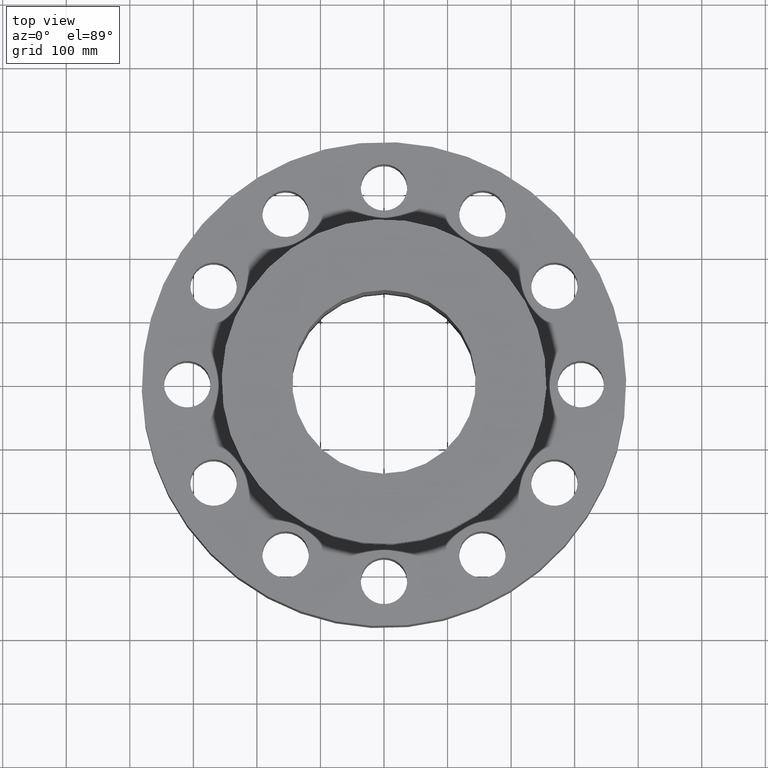
[diagram: clean part render]
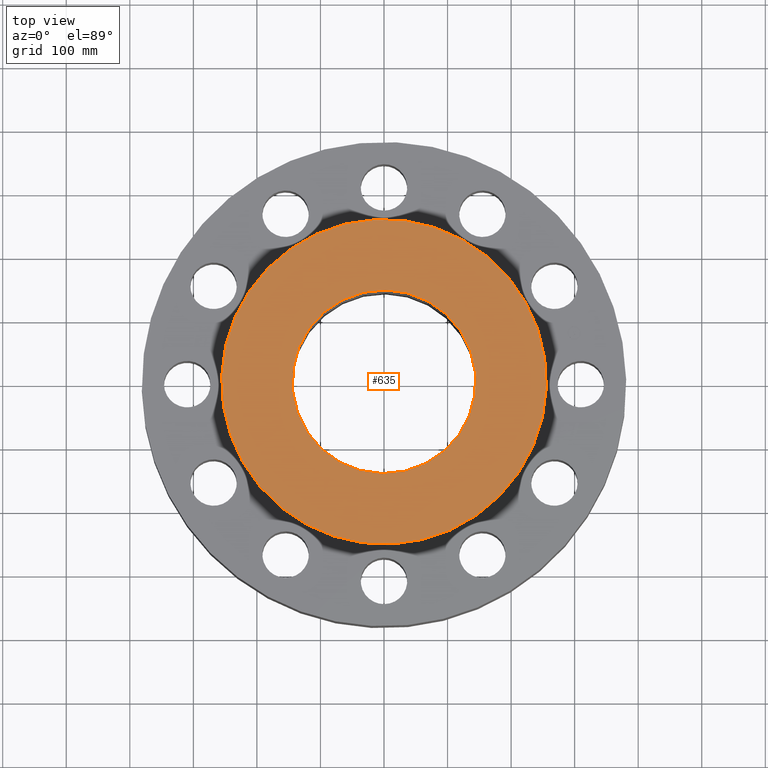
[diagram: same view with one face highlighted and labeled with its STEP entity id]
A machine part, top view. The second image highlights one B-rep face of the part: STEP entity #635.
In plain terms, the highlighted planar face has unit normal (0, 0, -1).
Its self-contained STEP definition (entity closure, byte-faithful):
#579=AXIS2_PLACEMENT_3D('Circle Axis2P3D',#577,#578,$) ;
#598=AXIS2_PLACEMENT_3D('Circle Axis2P3D',#596,#597,$) ;
#611=AXIS2_PLACEMENT_3D('Plane Axis2P3D',#608,#609,#610) ;
#619=AXIS2_PLACEMENT_3D('Circle Axis2P3D',#617,#618,$) ;
#628=AXIS2_PLACEMENT_3D('Circle Axis2P3D',#626,#627,$) ;
#574=CARTESIAN_POINT('Vertex',(4.82302091838,8.82848057265,15.7500000001)) ;
#577=CARTESIAN_POINT('Axis2P3D Location',(0.,0.,15.7500000001)) ;
#581=CARTESIAN_POINT('Vertex',(-4.82302091838,-8.82848057265,15.7500000001)) ;
#596=CARTESIAN_POINT('Axis2P3D Location',(0.,0.,15.7500000001)) ;
#608=CARTESIAN_POINT('Axis2P3D Location',(0.,10.06,15.7500000001)) ;
#617=CARTESIAN_POINT('Axis2P3D Location',(0.,0.,15.7500000001)) ;
#621=CARTESIAN_POINT('Vertex',(-2.72793131467,-4.99344477718,15.7500000001)) ;
#623=CARTESIAN_POINT('Vertex',(2.72793131467,4.99344477718,15.7500000001)) ;
#626=CARTESIAN_POINT('Axis2P3D Location',(0.,0.,15.7500000001)) ;
#578=DIRECTION('Axis2P3D Direction',(0.,0.,-0.0393700787402)) ;
#597=DIRECTION('Axis2P3D Direction',(0.,0.,-0.0393700787402)) ;
#609=DIRECTION('Axis2P3D Direction',(0.,0.,-0.0393700787402)) ;
#610=DIRECTION('Axis2P3D XDirection',(0.0393700787402,0.,0.)) ;
#618=DIRECTION('Axis2P3D Direction',(0.,0.,-0.0393700787402)) ;
#627=DIRECTION('Axis2P3D Direction',(0.,0.,-0.0393700787402)) ;
#614=ORIENTED_EDGE('',*,*,#583,.F.) ;
#615=ORIENTED_EDGE('',*,*,#600,.F.) ;
#632=ORIENTED_EDGE('',*,*,#625,.T.) ;
#633=ORIENTED_EDGE('',*,*,#630,.T.) ;
#634=FACE_BOUND('',#631,.T.) ;
#635=ADVANCED_FACE('PartBody',(#616,#634),#612,.F.) ;
#580=CIRCLE('generated circle',#579,10.06) ;
#599=CIRCLE('generated circle',#598,10.06) ;
#620=CIRCLE('generated circle',#619,5.69000000002) ;
#629=CIRCLE('generated circle',#628,5.69000000002) ;
#583=EDGE_CURVE('',#575,#582,#580,.T.) ;
#600=EDGE_CURVE('',#582,#575,#599,.T.) ;
#625=EDGE_CURVE('',#622,#624,#620,.T.) ;
#630=EDGE_CURVE('',#624,#622,#629,.T.) ;
#613=EDGE_LOOP('',(#614,#615)) ;
#631=EDGE_LOOP('',(#632,#633)) ;
#616=FACE_OUTER_BOUND('',#613,.T.) ;
#612=PLANE('',#611) ;
#575=VERTEX_POINT('',#574) ;
#582=VERTEX_POINT('',#581) ;
#622=VERTEX_POINT('',#621) ;
#624=VERTEX_POINT('',#623) ;